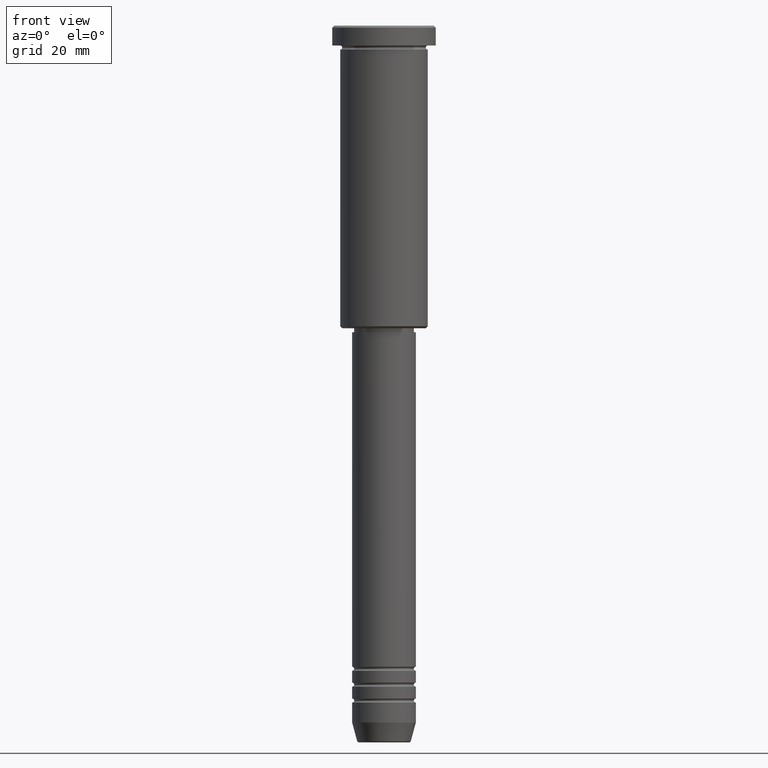
[diagram: clean part render]
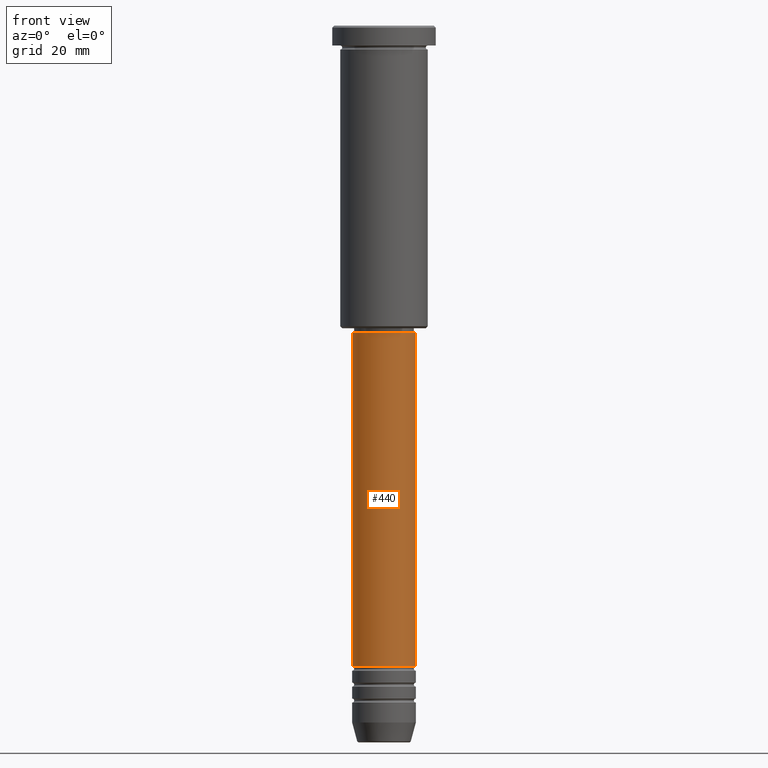
[diagram: same view with one face highlighted and labeled with its STEP entity id]
A machine part, front view. The second image highlights one B-rep face of the part: STEP entity #440.
In plain terms, the highlighted cylindrical surface (edge-blend (fillet) strip) has radius 8 mm, axis along (-0, -0, 1).
Its self-contained STEP definition (entity closure, byte-faithful):
#12 = EDGE_CURVE ( 'NONE', #713, #505, #247, .T. ) ;
#29 = EDGE_CURVE ( 'NONE', #961, #505, #48, .T. ) ;
#33 = DIRECTION ( 'NONE',  ( -0.000000000000000000, -0.000000000000000000, 1.000000000000000000 ) ) ;
#36 = CARTESIAN_POINT ( 'NONE',  ( 8.000000000000000000, 0.000000000000000000, -161.0000000000000000 ) ) ;
#48 = LINE ( 'NONE', #425, #1098 ) ;
#88 = EDGE_LOOP ( 'NONE', ( #1182, #521, #465, #586 ) ) ;
#92 = DIRECTION ( 'NONE',  ( -0.000000000000000000, -0.000000000000000000, 1.000000000000000000 ) ) ;
#93 = AXIS2_PLACEMENT_3D ( 'NONE', #520, #33, #1127 ) ;
#113 = VECTOR ( 'NONE', #535, 1000.000000000000000 ) ;
#145 = FACE_OUTER_BOUND ( 'NONE', #88, .T. ) ;
#179 = EDGE_CURVE ( 'NONE', #805, #961, #1152, .T. ) ;
#187 = CARTESIAN_POINT ( 'NONE',  ( 8.000000000000000000, 0.000000000000000000, -77.00000000000004263 ) ) ;
#245 = CARTESIAN_POINT ( 'NONE',  ( 0.000000000000000000, 0.000000000000000000, -77.00000000000004263 ) ) ;
#247 = CIRCLE ( 'NONE', #343, 8.000000000000000000 ) ;
#257 = CARTESIAN_POINT ( 'NONE',  ( -8.000000000000000000, 9.797174393178825657E-16, 0.000000000000000000 ) ) ;
#283 = DIRECTION ( 'NONE',  ( 1.000000000000000000, 0.000000000000000000, 0.000000000000000000 ) ) ;
#342 = LINE ( 'NONE', #257, #113 ) ;
#343 = AXIS2_PLACEMENT_3D ( 'NONE', #245, #430, #442 ) ;
#412 = AXIS2_PLACEMENT_3D ( 'NONE', #527, #92, #283 ) ;
#425 = CARTESIAN_POINT ( 'NONE',  ( 8.000000000000000000, 0.000000000000000000, 0.000000000000000000 ) ) ;
#430 = DIRECTION ( 'NONE',  ( -0.000000000000000000, -0.000000000000000000, 1.000000000000000000 ) ) ;
#440 = ADVANCED_FACE ( 'NONE', ( #145 ), #949, .T. ) ;
#442 = DIRECTION ( 'NONE',  ( 1.000000000000000000, 0.000000000000000000, 0.000000000000000000 ) ) ;
#465 = ORIENTED_EDGE ( 'NONE', *, *, #29, .T. ) ;
#505 = VERTEX_POINT ( 'NONE', #187 ) ;
#520 = CARTESIAN_POINT ( 'NONE',  ( 0.000000000000000000, 0.000000000000000000, 0.000000000000000000 ) ) ;
#521 = ORIENTED_EDGE ( 'NONE', *, *, #179, .T. ) ;
#527 = CARTESIAN_POINT ( 'NONE',  ( 0.000000000000000000, 0.000000000000000000, -161.0000000000000000 ) ) ;
#535 = DIRECTION ( 'NONE',  ( -0.000000000000000000, -0.000000000000000000, 1.000000000000000000 ) ) ;
#586 = ORIENTED_EDGE ( 'NONE', *, *, #12, .F. ) ;
#624 = EDGE_CURVE ( 'NONE', #805, #713, #342, .T. ) ;
#661 = CARTESIAN_POINT ( 'NONE',  ( -8.000000000000000000, 9.797174393178825657E-16, -161.0000000000000000 ) ) ;
#713 = VERTEX_POINT ( 'NONE', #1020 ) ;
#794 = DIRECTION ( 'NONE',  ( -0.000000000000000000, -0.000000000000000000, 1.000000000000000000 ) ) ;
#805 = VERTEX_POINT ( 'NONE', #661 ) ;
#949 = CYLINDRICAL_SURFACE ( 'NONE', #93, 8.000000000000000000 ) ;
#961 = VERTEX_POINT ( 'NONE', #36 ) ;
#1020 = CARTESIAN_POINT ( 'NONE',  ( -8.000000000000000000, 9.797174393178825657E-16, -77.00000000000004263 ) ) ;
#1098 = VECTOR ( 'NONE', #794, 1000.000000000000000 ) ;
#1127 = DIRECTION ( 'NONE',  ( 1.000000000000000000, 0.000000000000000000, 0.000000000000000000 ) ) ;
#1152 = CIRCLE ( 'NONE', #412, 8.000000000000000000 ) ;
#1182 = ORIENTED_EDGE ( 'NONE', *, *, #624, .F. ) ;